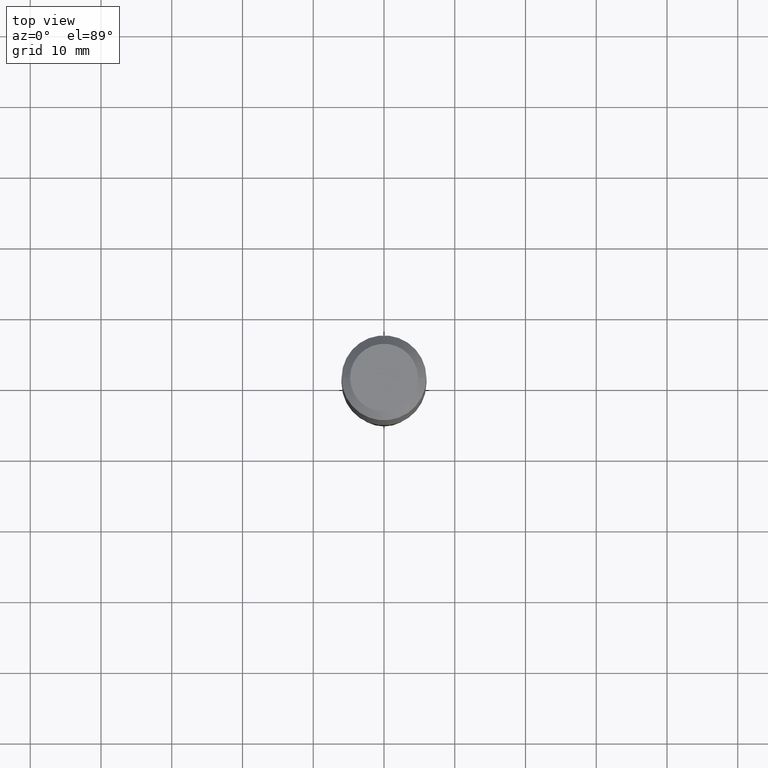
[diagram: clean part render]
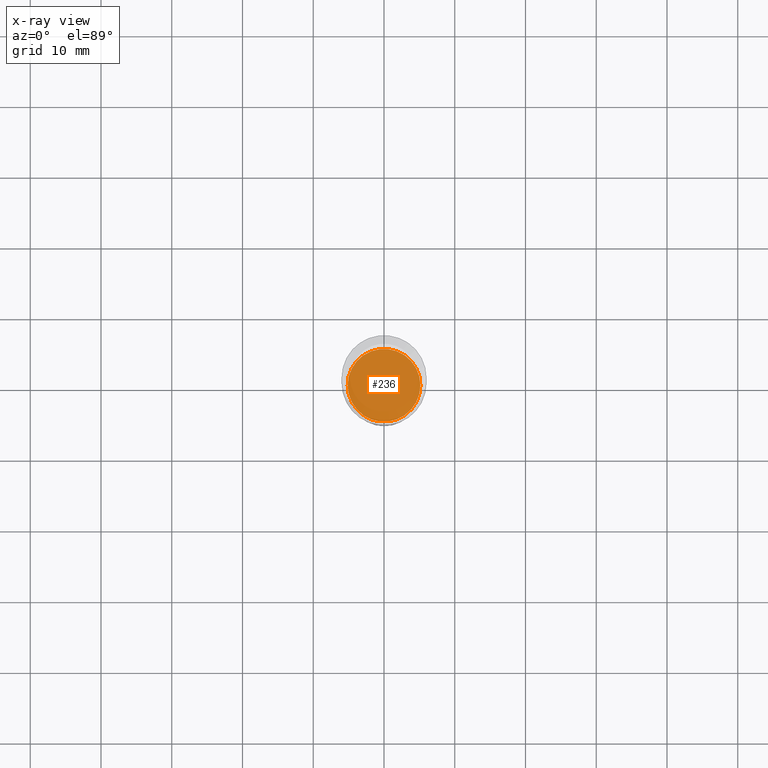
[diagram: x-ray — body ghosted, one internal face saturated and labeled with its STEP entity id]
A machine part, top view, then the same camera in x-ray: the body is ghosted and one INTERNAL B-rep face — a face not visible from any outside direction — is saturated and labeled: STEP entity #236.
In plain terms, the highlighted planar face has unit normal (-0, 0, 1).
Its self-contained STEP definition (entity closure, byte-faithful):
#4 = ORIENTED_EDGE ( 'NONE', *, *, #154, .F. ) ;
#35 = CARTESIAN_POINT ( 'NONE',  ( 5.969144809017299038E-29, -8.522356799982232966E-15, -2.440900000000000070 ) ) ;
#36 = VERTEX_POINT ( 'NONE', #360 ) ;
#76 = PLANE ( 'NONE',  #374 ) ;
#102 = EDGE_LOOP ( 'NONE', ( #4, #104 ) ) ;
#104 = ORIENTED_EDGE ( 'NONE', *, *, #390, .F. ) ;
#137 = CARTESIAN_POINT ( 'NONE',  ( 5.969144809017299038E-29, -8.522356799982232966E-15, -2.440900000000000070 ) ) ;
#154 = EDGE_CURVE ( 'NONE', #194, #36, #306, .T. ) ;
#161 = AXIS2_PLACEMENT_3D ( 'NONE', #137, #472, #279 ) ;
#186 = DIRECTION ( 'NONE',  ( 1.000000000000000000, -6.982962677686264344E-15, 0.000000000000000000 ) ) ;
#194 = VERTEX_POINT ( 'NONE', #215 ) ;
#215 = CARTESIAN_POINT ( 'NONE',  ( 0.2022500000000000131, -9.934661001544280629E-15, -2.440900000000000070 ) ) ;
#236 = ADVANCED_FACE ( 'NONE', ( #413 ), #76, .F. ) ;
#266 = CARTESIAN_POINT ( 'NONE',  ( 5.969144809017299038E-29, -8.522356799982232966E-15, -2.440900000000000070 ) ) ;
#279 = DIRECTION ( 'NONE',  ( 1.000000000000000000, -6.982962677686264344E-15, 0.000000000000000000 ) ) ;
#306 = CIRCLE ( 'NONE', #161, 0.2022500000000000131 ) ;
#348 = CIRCLE ( 'NONE', #487, 0.2022500000000000131 ) ;
#360 = CARTESIAN_POINT ( 'NONE',  ( -0.2022500000000000131, -7.082634889733319637E-15, -2.440900000000000070 ) ) ;
#374 = AXIS2_PLACEMENT_3D ( 'NONE', #35, #488, #404 ) ;
#390 = EDGE_CURVE ( 'NONE', #36, #194, #348, .T. ) ;
#404 = DIRECTION ( 'NONE',  ( 1.000000000000000000, -6.982962677686265922E-15, 4.876176775795935793E-29 ) ) ;
#413 = FACE_OUTER_BOUND ( 'NONE', #102, .T. ) ;
#464 = DIRECTION ( 'NONE',  ( -2.445468806185136597E-29, 3.491481338843145583E-15, 1.000000000000000000 ) ) ;
#472 = DIRECTION ( 'NONE',  ( -2.445468806185136597E-29, 3.491481338843145583E-15, 1.000000000000000000 ) ) ;
#487 = AXIS2_PLACEMENT_3D ( 'NONE', #266, #464, #186 ) ;
#488 = DIRECTION ( 'NONE',  ( -2.438088387897960049E-29, 3.491481338843145188E-15, 1.000000000000000000 ) ) ;